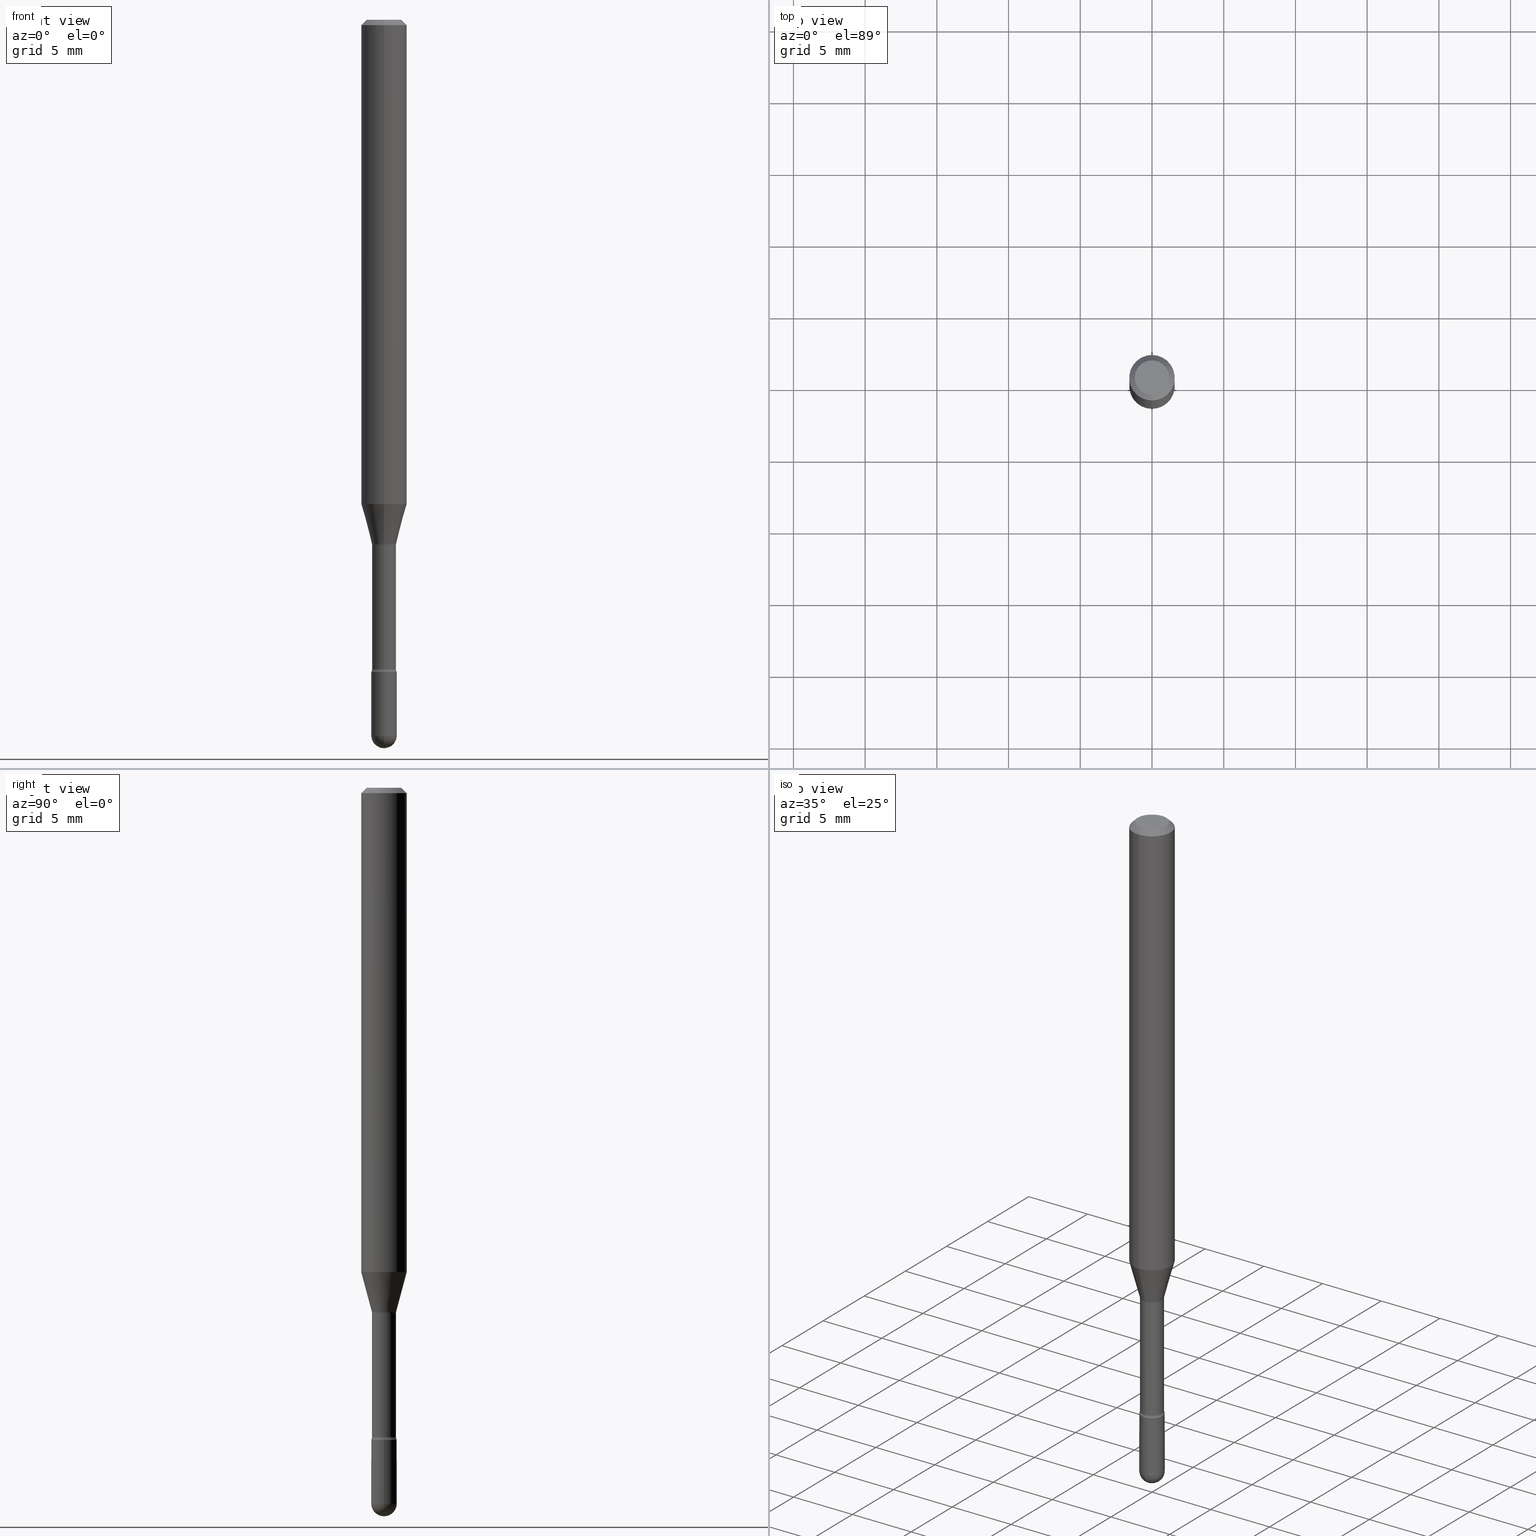
[diagram: canonical four-view strip — front | top / right | iso, engineering-drawing reading convention]
A machine part, canonical four-view strip (front | top / right | iso — engineering-drawing reading convention). The complete STEP part file that produces these views, byte-faithful:
ISO-10303-21;
HEADER;
FILE_DESCRIPTION (( 'STEP AP203' ),
    '1' );
FILE_NAME ('01598.STEP',
    '2024-04-09T20:08:18',
    ( '' ),
    ( '' ),
    'SwSTEP 2.0',
    'SolidWorks 2023',
    '' );
FILE_SCHEMA (( 'CONFIG_CONTROL_DESIGN' ));
ENDSEC;

DATA;
#1 = CIRCLE ( 'NONE', #68, 0.03500000000000001721 ) ;
#2 = DATE_AND_TIME ( #482, #290 ) ;
#3 = FACE_OUTER_BOUND ( 'NONE', #396, .T. ) ;
#4 = COORDINATED_UNIVERSAL_TIME_OFFSET ( 5, 0, .BEHIND. ) ;
#5 = DIRECTION ( 'NONE',  ( -6.982962677686265922E-15, -1.000000000000000000, 0.000000000000000000 ) ) ;
#6 = DIRECTION ( 'NONE',  ( -6.982962677686266711E-15, -1.000000000000000000, 0.000000000000000000 ) ) ;
#7 = ORIENTED_EDGE ( 'NONE', *, *, #50, .T. ) ;
#8 = EDGE_CURVE ( 'NONE', #372, #99, #413, .T. ) ;
#9 = DATE_AND_TIME ( #301, #525 ) ;
#10 = CLOSED_SHELL ( 'NONE', ( #250, #177, #72, #517, #223 ) ) ;
#11 = CARTESIAN_POINT ( 'NONE',  ( -1.169113584055446105E-44, 1.669184350826100908E-30, 4.780733988912460139E-16 ) ) ;
#12 = DIRECTION ( 'NONE',  ( -2.445483522244811550E-29, 3.491460264608105036E-15, 1.000000000000000000 ) ) ;
#13 = EDGE_LOOP ( 'NONE', ( #352, #443, #191, #400 ) ) ;
#14 = EDGE_CURVE ( 'NONE', #118, #449, #383, .T. ) ;
#15 = AXIS2_PLACEMENT_3D ( 'NONE', #26, #499, #373 ) ;
#16 = ORIENTED_EDGE ( 'NONE', *, *, #168, .T. ) ;
#17 = AXIS2_PLACEMENT_3D ( 'NONE', #553, #503, #422 ) ;
#18 = CARTESIAN_POINT ( 'NONE',  ( 4.440892098500948609E-16, 0.06249999999999532319, -1.329531296095961768 ) ) ;
#19 = VERTEX_POINT ( 'NONE', #350 ) ;
#20 = ORIENTED_EDGE ( 'NONE', *, *, #470, .T. ) ;
#21 = DIRECTION ( 'NONE',  ( -2.445483522244811550E-29, 3.491460264608105036E-15, 1.000000000000000000 ) ) ;
#22 = ORIENTED_EDGE ( 'NONE', *, *, #426, .F. ) ;
#23 = LINE ( 'NONE', #56, #236 ) ;
#24 = ORIENTED_EDGE ( 'NONE', *, *, #348, .T. ) ;
#25 = CIRCLE ( 'NONE', #121, 0.03500000000000000333 ) ;
#26 = CARTESIAN_POINT ( 'NONE',  ( 3.516831516584593251E-29, -5.021042826821123581E-15, -1.438092501787272992 ) ) ;
#27 = CONICAL_SURFACE ( 'NONE', #15, 0.03341111260566397706, 0.2617993877991501850 ) ;
#28 = APPROVAL_PERSON_ORGANIZATION ( #335, #320, #248 ) ;
#29 = DIRECTION ( 'NONE',  ( -2.445483522244811550E-29, 3.491460264608105036E-15, 1.000000000000000000 ) ) ;
#30 = VERTEX_POINT ( 'NONE', #467 ) ;
#31 = DIRECTION ( 'NONE',  ( -6.982962677686265133E-15, -1.000000000000000000, 3.491460264608105036E-15 ) ) ;
#32 = VERTEX_POINT ( 'NONE', #178 ) ;
#33 = CC_DESIGN_PERSON_AND_ORGANIZATION_ASSIGNMENT ( #560, #421, ( #322 ) ) ;
#34 = CIRCLE ( 'NONE', #531, 0.04749999999999999362 ) ;
#35 = CARTESIAN_POINT ( 'NONE',  ( -2.444036937189758884E-16, -0.03500000000000629691, -1.789999999999999813 ) ) ;
#36 = LINE ( 'NONE', #197, #505 ) ;
#37 = LINE ( 'NONE', #437, #194 ) ;
#38 = CARTESIAN_POINT ( 'NONE',  ( 4.377389163071394665E-29, -6.249751596529231267E-15, -1.790000000000000036 ) ) ;
#39 = AXIS2_PLACEMENT_3D ( 'NONE', #11, #361, #318 ) ;
#40 = DIRECTION ( 'NONE',  ( -6.982962677686267499E-15, -1.000000000000000000, 0.000000000000000000 ) ) ;
#41 = DIRECTION ( 'NONE',  ( -2.445468806185136597E-29, 3.491481338843145583E-15, 1.000000000000000000 ) ) ;
#42 = DIRECTION ( 'NONE',  ( 7.105427357601001859E-15, 1.000000000000000000, 0.000000000000000000 ) ) ;
#43 = CARTESIAN_POINT ( 'NONE',  ( 3.526325582235213320E-29, -5.034597672996613409E-15, -1.441974787463810914 ) ) ;
#44 = TOROIDAL_SURFACE ( 'NONE', #376, 0.04789999999999999813, 0.01500000000000002373 ) ;
#45 = CARTESIAN_POINT ( 'NONE',  ( 3.526325582235213320E-29, -5.034597672996613409E-15, -1.441974787463810914 ) ) ;
#46 = LOCAL_TIME ( 16, 8, 18.00000000000000000, #384 ) ;
#47 = CARTESIAN_POINT ( 'NONE',  ( -0.03500000000000000333, -6.306566256161970939E-15, -1.964999999999999858 ) ) ;
#48 = ORIENTED_EDGE ( 'NONE', *, *, #347, .T. ) ;
#49 = ADVANCED_FACE ( 'NONE', ( #3 ), #53, .T. ) ;
#50 = EDGE_CURVE ( 'NONE', #30, #375, #37, .T. ) ;
#51 = FACE_OUTER_BOUND ( 'NONE', #405, .T. ) ;
#52 = EDGE_CURVE ( 'NONE', #62, #372, #93, .T. ) ;
#53 = CYLINDRICAL_SURFACE ( 'NONE', #139, 0.03289999999999998481 ) ;
#54 = ORIENTED_EDGE ( 'NONE', *, *, #501, .F. ) ;
#55 = ORIENTED_EDGE ( 'NONE', *, *, #540, .T. ) ;
#56 = CARTESIAN_POINT ( 'NONE',  ( 0.03500000000000000333, -2.444036937190193250E-16, 1.706661871528577808E-30 ) ) ;
#57 = CIRCLE ( 'NONE', #339, 0.01500000000000001853 ) ;
#58 = ORIENTED_EDGE ( 'NONE', *, *, #210, .T. ) ;
#59 = AXIS2_PLACEMENT_3D ( 'NONE', #200, #117, #550 ) ;
#60 = DIRECTION ( 'NONE',  ( -2.445468806185136597E-29, 3.491481338843145583E-15, 1.000000000000000000 ) ) ;
#61 = ADVANCED_FACE ( 'NONE', ( #304 ), #338, .F. ) ;
#62 = VERTEX_POINT ( 'NONE', #300 ) ;
#63 = CARTESIAN_POINT ( 'NONE',  ( 2.444036937190630575E-16, 0.03499999999999375139, -1.790000000000000036 ) ) ;
#64 = ORIENTED_EDGE ( 'NONE', *, *, #14, .F. ) ;
#65 = PRODUCT_DEFINITION_SHAPE ( 'NONE', 'NONE',  #331 ) ;
#66 = DIRECTION ( 'NONE',  ( 1.839019923739599526E-15, 0.2588190451025248473, 0.9659258262890670910 ) ) ;
#67 = EDGE_LOOP ( 'NONE', ( #154, #325, #487, #442 ) ) ;
#68 = AXIS2_PLACEMENT_3D ( 'NONE', #450, #150, #541 ) ;
#69 = DIRECTION ( 'NONE',  ( 6.982962677686265922E-15, 1.000000000000000000, -3.491460264608105430E-15 ) ) ;
#70 = LOCAL_TIME ( 16, 8, 18.00000000000000000, #88 ) ;
#71 = CARTESIAN_POINT ( 'NONE',  ( 3.668225283367237083E-31, -5.237190396912186618E-17, -0.01500000000000008271 ) ) ;
#72 = ADVANCED_FACE ( 'NONE', ( #98 ), #466, .T. ) ;
#73 = ORIENTED_EDGE ( 'NONE', *, *, #429, .T. ) ;
#74 = LINE ( 'NONE', #240, #447 ) ;
#75 = ORIENTED_EDGE ( 'NONE', *, *, #351, .F. ) ;
#76 = AXIS2_PLACEMENT_3D ( 'NONE', #148, #60, #349 ) ;
#77 = CARTESIAN_POINT ( 'NONE',  ( 4.358696770084339745E-29, -6.222988803562137698E-15, -1.782345589506695971 ) ) ;
#78 = CC_DESIGN_SECURITY_CLASSIFICATION ( #322, ( #345 ) ) ;
#79 = SHAPE_DEFINITION_REPRESENTATION ( #65, #124 ) ;
#80 = EDGE_CURVE ( 'NONE', #372, #116, #481, .T. ) ;
#81 = DIRECTION ( 'NONE',  ( 1.000000000000000000, -6.982962677686276966E-15, 0.000000000000000000 ) ) ;
#82 = DIRECTION ( 'NONE',  ( 1.000000000000000000, -6.982962677686265922E-15, 4.876176775795935793E-29 ) ) ;
#83 = FACE_OUTER_BOUND ( 'NONE', #451, .T. ) ;
#84 = APPROVAL_STATUS ( 'not_yet_approved' ) ;
#85 = DIRECTION ( 'NONE',  ( -2.445468806185136597E-29, 3.491481338843145583E-15, 1.000000000000000000 ) ) ;
#86 = CIRCLE ( 'NONE', #59, 0.03500000000000000333 ) ;
#87 = VECTOR ( 'NONE', #433, 39.37007874015748143 ) ;
#88 = COORDINATED_UNIVERSAL_TIME_OFFSET ( 5, 0, .BEHIND. ) ;
#89 = CARTESIAN_POINT ( 'NONE',  ( 0.03500000000000000333, -6.494155290248250444E-15, -1.790000000000000036 ) ) ;
#90 = DIRECTION ( 'NONE',  ( -6.982962677686266711E-15, -1.000000000000000000, 0.000000000000000000 ) ) ;
#91 = PERSON_AND_ORGANIZATION ( #458, #96 ) ;
#92 = CARTESIAN_POINT ( 'NONE',  ( 4.358670540980283234E-29, -6.223026365132013835E-15, -1.782345589506695971 ) ) ;
#93 = CIRCLE ( 'NONE', #166, 0.03289999999999996400 ) ;
#94 = AXIS2_PLACEMENT_3D ( 'NONE', #566, #211, #131 ) ;
#95 = APPLICATION_PROTOCOL_DEFINITION ( 'international standard', 'config_control_design', 1994, #169 ) ;
#96 = ORGANIZATION ( 'UNSPECIFIED', 'UNSPECIFIED', '' ) ;
#97 = CYLINDRICAL_SURFACE ( 'NONE', #184, 0.03500000000000000333 ) ;
#98 = FACE_OUTER_BOUND ( 'NONE', #233, .T. ) ;
#99 = VERTEX_POINT ( 'NONE', #204 ) ;
#100 = ORIENTED_EDGE ( 'NONE', *, *, #170, .T. ) ;
#101 = PERSON_AND_ORGANIZATION ( #458, #96 ) ;
#102 = DIRECTION ( 'NONE',  ( -6.982962677686265922E-15, -1.000000000000000000, 3.491460264608105036E-15 ) ) ;
#103 = EDGE_LOOP ( 'NONE', ( #106, #513, #55, #539 ) ) ;
#104 = CARTESIAN_POINT ( 'NONE',  ( 4.377415504818212781E-29, -6.249713873648508148E-15, -1.790000000000000036 ) ) ;
#105 = AXIS2_PLACEMENT_3D ( 'NONE', #313, #436, #448 ) ;
#106 = ORIENTED_EDGE ( 'NONE', *, *, #470, .F. ) ;
#107 = CYLINDRICAL_SURFACE ( 'NONE', #425, 0.03289999999999998481 ) ;
#108 = ORIENTED_EDGE ( 'NONE', *, *, #498, .F. ) ;
#109 = ORIENTED_EDGE ( 'NONE', *, *, #156, .F. ) ;
#110 = LINE ( 'NONE', #163, #374 ) ;
#111 = ORIENTED_EDGE ( 'NONE', *, *, #379, .T. ) ;
#112 = CARTESIAN_POINT ( 'NONE',  ( 3.316907271900976096E-16, 0.04749999999999999362, 3.181832032788318113E-17 ) ) ;
#113 = CC_DESIGN_PERSON_AND_ORGANIZATION_ASSIGNMENT ( #172, #295, ( #345 ) ) ;
#114 = FACE_OUTER_BOUND ( 'NONE', #67, .T. ) ;
#115 = CIRCLE ( 'NONE', #555, 0.01500000000000007924 ) ;
#116 = VERTEX_POINT ( 'NONE', #387 ) ;
#117 = DIRECTION ( 'NONE',  ( -2.445468806185136597E-29, 3.491481338843145583E-15, 1.000000000000000000 ) ) ;
#118 = VERTEX_POINT ( 'NONE', #382 ) ;
#119 = LINE ( 'NONE', #559, #253 ) ;
#120 = APPROVAL ( #478, 'UNSPECIFIED' ) ;
#121 = AXIS2_PLACEMENT_3D ( 'NONE', #445, #432, #404 ) ;
#122 = CALENDAR_DATE ( 2024, 9, 4 ) ;
#123 = DIRECTION ( 'NONE',  ( -2.445468806185136597E-29, 3.491481338843145583E-15, 1.000000000000000000 ) ) ;
#124 = ADVANCED_BREP_SHAPE_REPRESENTATION ( '01598', ( #316, #511, #239 ), #509 ) ;
#125 = CARTESIAN_POINT ( 'NONE',  ( -3.344839122611288745E-16, -0.04790000000000627089, -1.782345589506695749 ) ) ;
#126 = DIRECTION ( 'NONE',  ( -2.445483522244811550E-29, 3.491460264608105036E-15, 1.000000000000000000 ) ) ;
#127 = CC_DESIGN_DATE_AND_TIME_ASSIGNMENT ( #9, #440, ( #331 ) ) ;
#128 = CIRCLE ( 'NONE', #523, 0.03500000000000000333 ) ;
#129 = AXIS2_PLACEMENT_3D ( 'NONE', #112, #456, #69 ) ;
#130 = LOCAL_TIME ( 16, 8, 18.00000000000000000, #4 ) ;
#131 = DIRECTION ( 'NONE',  ( -6.982962677686265922E-15, -1.000000000000000000, 4.370956789862821150E-15 ) ) ;
#132 = CARTESIAN_POINT ( 'NONE',  ( 4.358670540980283234E-29, -6.223026365132013835E-15, -1.782345589506695971 ) ) ;
#133 = EDGE_CURVE ( 'NONE', #462, #99, #243, .T. ) ;
#134 = APPROVAL_STATUS ( 'not_yet_approved' ) ;
#135 = EDGE_CURVE ( 'NONE', #315, #446, #25, .T. ) ;
#136 = COORDINATED_UNIVERSAL_TIME_OFFSET ( 5, 0, .BEHIND. ) ;
#137 = DIRECTION ( 'NONE',  ( -6.982962677686265133E-15, -1.000000000000000000, 3.491460264608105036E-15 ) ) ;
#138 = DIRECTION ( 'NONE',  ( -6.982962677686265922E-15, -1.000000000000000000, 0.000000000000000000 ) ) ;
#139 = AXIS2_PLACEMENT_3D ( 'NONE', #538, #480, #262 ) ;
#140 = AXIS2_PLACEMENT_3D ( 'NONE', #510, #417, #235 ) ;
#141 = ORIENTED_EDGE ( 'NONE', *, *, #210, .F. ) ;
#142 = PERSON_AND_ORGANIZATION_ROLE ( 'design_owner' ) ;
#143 = DIRECTION ( 'NONE',  ( -6.982962677686265922E-15, -1.000000000000000000, 3.491460264608103852E-15 ) ) ;
#144 = DIRECTION ( 'NONE',  ( -6.982962677686265922E-15, -1.000000000000000000, 3.491460264608105036E-15 ) ) ;
#145 = EDGE_LOOP ( 'NONE', ( #438, #149, #321, #271 ) ) ;
#146 = DIRECTION ( 'NONE',  ( -2.445468806185136597E-29, 3.491481338843145583E-15, 1.000000000000000000 ) ) ;
#147 = ORIENTED_EDGE ( 'NONE', *, *, #429, .F. ) ;
#148 = CARTESIAN_POINT ( 'NONE',  ( 4.805346204153793345E-29, -6.860760830826780393E-15, -1.964999999999999858 ) ) ;
#149 = ORIENTED_EDGE ( 'NONE', *, *, #8, .T. ) ;
#150 = DIRECTION ( 'NONE',  ( -1.000000000000000000, 7.105427357601001070E-15, -4.926315508542082329E-29 ) ) ;
#151 = CC_DESIGN_APPROVAL ( #435, ( #345 ) ) ;
#152 = ORIENTED_EDGE ( 'NONE', *, *, #135, .T. ) ;
#153 = DESIGN_CONTEXT ( 'detailed design', #169, 'design' ) ;
#154 = ORIENTED_EDGE ( 'NONE', *, *, #518, .F. ) ;
#155 = PLANE ( 'NONE',  #129 ) ;
#156 = EDGE_CURVE ( 'NONE', #99, #462, #465, .T. ) ;
#157 = ADVANCED_FACE ( 'NONE', ( #391 ), #551, .F. ) ;
#158 = ORIENTED_EDGE ( 'NONE', *, *, #348, .F. ) ;
#159 = DIRECTION ( 'NONE',  ( -6.982962677686267499E-15, -1.000000000000000000, 0.000000000000000000 ) ) ;
#160 = CIRCLE ( 'NONE', #411, 0.06250000000000000000 ) ;
#161 = DIRECTION ( 'NONE',  ( -2.445483522244811550E-29, 3.491460264608105036E-15, 1.000000000000000000 ) ) ;
#162 = AXIS2_PLACEMENT_3D ( 'NONE', #340, #256, #90 ) ;
#163 = CARTESIAN_POINT ( 'NONE',  ( -0.03500000000000000333, 2.486899575160350887E-16, -1.721627281589217108E-30 ) ) ;
#164 = ORIENTED_EDGE ( 'NONE', *, *, #156, .T. ) ;
#165 = LENGTH_MEASURE_WITH_UNIT ( LENGTH_MEASURE( 0.02539999999999999897 ), #215 );
#166 = AXIS2_PLACEMENT_3D ( 'NONE', #175, #530, #138 ) ;
#167 = DIRECTION ( 'NONE',  ( -1.000000000000000000, 6.982962677686265922E-15, -4.883557194083112340E-29 ) ) ;
#168 = EDGE_CURVE ( 'NONE', #369, #116, #533, .T. ) ;
#169 = APPLICATION_CONTEXT ( 'configuration controlled 3d designs of mechanical parts and assemblies' ) ;
#170 = EDGE_CURVE ( 'NONE', #446, #544, #23, .T. ) ;
#171 = DIRECTION ( 'NONE',  ( -2.445483522244811830E-29, 3.491460264608105430E-15, 1.000000000000000000 ) ) ;
#172 = PERSON_AND_ORGANIZATION ( #458, #96 ) ;
#173 = LINE ( 'NONE', #246, #455 ) ;
#174 = AXIS2_PLACEMENT_3D ( 'NONE', #257, #431, #42 ) ;
#175 = CARTESIAN_POINT ( 'NONE',  ( 4.358696770084339745E-29, -6.222988803562137698E-15, -1.782345589506695971 ) ) ;
#176 = CARTESIAN_POINT ( 'NONE',  ( 0.000000000000000000, 0.000000000000000000, 0.000000000000000000 ) ) ;
#177 = ADVANCED_FACE ( 'NONE', ( #232 ), #193, .T. ) ;
#178 = CARTESIAN_POINT ( 'NONE',  ( -3.773273898774340269E-16, -0.04749999999999999362, 8.309632947117512809E-17 ) ) ;
#179 = VERTEX_POINT ( 'NONE', #546 ) ;
#180 = APPROVAL_ROLE ( '' ) ;
#181 = DIRECTION ( 'NONE',  ( -2.445483522244811550E-29, 3.491460264608105036E-15, 1.000000000000000000 ) ) ;
#182 = VECTOR ( 'NONE', #452, 39.37007874015749564 ) ;
#183 = VERTEX_POINT ( 'NONE', #18 ) ;
#184 = AXIS2_PLACEMENT_3D ( 'NONE', #537, #441, #543 ) ;
#185 = EDGE_LOOP ( 'NONE', ( #280, #231, #73, #108 ) ) ;
#186 = DIRECTION ( 'NONE',  ( -6.982962677686265922E-15, -1.000000000000000000, 3.491460264608105430E-15 ) ) ;
#187 = ORIENTED_EDGE ( 'NONE', *, *, #214, .F. ) ;
#188 = DIRECTION ( 'NONE',  ( -2.445483522244811550E-29, 3.491460264608105036E-15, 1.000000000000000000 ) ) ;
#189 = ORIENTED_EDGE ( 'NONE', *, *, #198, .F. ) ;
#190 = DIRECTION ( 'NONE',  ( -2.445483522244811550E-29, 3.491460264608105036E-15, 1.000000000000000000 ) ) ;
#191 = ORIENTED_EDGE ( 'NONE', *, *, #415, .T. ) ;
#192 = ORIENTED_EDGE ( 'NONE', *, *, #196, .F. ) ;
#193 = SPHERICAL_SURFACE ( 'NONE', #105, 0.03500000000000001721 ) ;
#194 = VECTOR ( 'NONE', #526, 39.37007874015748143 ) ;
#195 = ORIENTED_EDGE ( 'NONE', *, *, #8, .F. ) ;
#196 = EDGE_CURVE ( 'NONE', #285, #183, #514, .T. ) ;
#197 = CARTESIAN_POINT ( 'NONE',  ( 2.374002335562076701E-16, 0.03341111260565896024, -1.438092501787272992 ) ) ;
#198 = EDGE_CURVE ( 'NONE', #226, #315, #1, .T. ) ;
#199 = ORIENTED_EDGE ( 'NONE', *, *, #485, .F. ) ;
#200 = CARTESIAN_POINT ( 'NONE',  ( 4.377389163071394665E-29, -6.249751596529231267E-15, -1.790000000000000036 ) ) ;
#201 = DIRECTION ( 'NONE',  ( -6.982962677686265922E-15, -1.000000000000000000, 3.483106191921935554E-15 ) ) ;
#202 = CIRCLE ( 'NONE', #483, 0.03341111260566397706 ) ;
#203 = CARTESIAN_POINT ( 'NONE',  ( 4.440892098500952553E-16, 0.06249999999999993755, -0.01500000000000030129 ) ) ;
#204 = CARTESIAN_POINT ( 'NONE',  ( 2.337685600651165364E-16, 0.03289999999999496105, -1.441974787463810914 ) ) ;
#205 = DIRECTION ( 'NONE',  ( -2.445468806185136877E-29, 3.491481338843145188E-15, 1.000000000000000000 ) ) ;
#206 =( NAMED_UNIT ( * ) SI_UNIT ( $, .STERADIAN. ) SOLID_ANGLE_UNIT ( ) );
#207 = AXIS2_PLACEMENT_3D ( 'NONE', #556, #332, #238 ) ;
#208 = AXIS2_PLACEMENT_3D ( 'NONE', #552, #344, #6 ) ;
#209 =( CONVERSION_BASED_UNIT ( 'INCH', #165 ) LENGTH_UNIT ( ) NAMED_UNIT ( #522 ) );
#210 = EDGE_CURVE ( 'NONE', #226, #277, #457, .T. ) ;
#211 = DIRECTION ( 'NONE',  ( -2.445483522244811550E-29, 3.491460264608105036E-15, 1.000000000000000000 ) ) ;
#212 = DIRECTION ( 'NONE',  ( 6.982962677686265922E-15, 1.000000000000000000, -3.483106191921935554E-15 ) ) ;
#213 = DIRECTION ( 'NONE',  ( -6.982962677686265133E-15, -1.000000000000000000, 0.000000000000000000 ) ) ;
#214 = EDGE_CURVE ( 'NONE', #277, #242, #319, .T. ) ;
#215 =( LENGTH_UNIT ( ) NAMED_UNIT ( * ) SI_UNIT ( $, .METRE. ) );
#216 = AXIS2_PLACEMENT_3D ( 'NONE', #92, #354, #102 ) ;
#217 = MECHANICAL_CONTEXT ( 'NONE', #439, 'mechanical' ) ;
#218 = DIRECTION ( 'NONE',  ( 6.982962677686265922E-15, 1.000000000000000000, 0.000000000000000000 ) ) ;
#219 = DIRECTION ( 'NONE',  ( 1.000000000000000000, 0.000000000000000000, 0.000000000000000000 ) ) ;
#220 = CARTESIAN_POINT ( 'NONE',  ( 0.000000000000000000, 0.000000000000000000, 0.000000000000000000 ) ) ;
#221 = ORIENTED_EDGE ( 'NONE', *, *, #198, .T. ) ;
#222 = ORIENTED_EDGE ( 'NONE', *, *, #393, .T. ) ;
#223 = ADVANCED_FACE ( 'NONE', ( #261 ), #407, .T. ) ;
#224 = DIRECTION ( 'NONE',  ( -2.445483522244811550E-29, 3.491460264608105036E-15, 1.000000000000000000 ) ) ;
#225 = AXIS2_PLACEMENT_3D ( 'NONE', #284, #326, #31 ) ;
#226 = VERTEX_POINT ( 'NONE', #395 ) ;
#227 = ADVANCED_FACE ( 'NONE', ( #272 ), #289, .F. ) ;
#228 = ORIENTED_EDGE ( 'NONE', *, *, #554, .F. ) ;
#229 = DIRECTION ( 'NONE',  ( 1.000000000000000000, -6.982962677686265922E-15, 4.876176775795936353E-29 ) ) ;
#230 = ORIENTED_EDGE ( 'NONE', *, *, #518, .T. ) ;
#231 = ORIENTED_EDGE ( 'NONE', *, *, #14, .T. ) ;
#232 = FACE_OUTER_BOUND ( 'NONE', #408, .T. ) ;
#233 = EDGE_LOOP ( 'NONE', ( #357, #363 ) ) ;
#234 = CC_DESIGN_PERSON_AND_ORGANIZATION_ASSIGNMENT ( #91, #264, ( #331 ) ) ;
#235 = DIRECTION ( 'NONE',  ( -6.982962677686265922E-15, -1.000000000000000000, 3.491460264608105036E-15 ) ) ;
#236 = VECTOR ( 'NONE', #311, 39.37007874015748143 ) ;
#237 = CIRCLE ( 'NONE', #207, 0.04749999999999999362 ) ;
#238 = DIRECTION ( 'NONE',  ( -6.982962677686266711E-15, -1.000000000000000000, 3.491460264608105430E-15 ) ) ;
#239 = AXIS2_PLACEMENT_3D ( 'NONE', #176, #346, #219 ) ;
#240 = CARTESIAN_POINT ( 'NONE',  ( -4.364351673553916201E-16, -0.06250000000000000000, 6.962896654292526280E-16 ) ) ;
#241 = CARTESIAN_POINT ( 'NONE',  ( -2.486899575159870668E-16, -0.03500000000000687284, -1.964999999999999858 ) ) ;
#242 = VERTEX_POINT ( 'NONE', #47 ) ;
#243 = CIRCLE ( 'NONE', #365, 0.03289999999999999869 ) ;
#244 = DIRECTION ( 'NONE',  ( 6.982962677686265922E-15, 1.000000000000000000, -3.483106191921935554E-15 ) ) ;
#245 = DATE_TIME_ROLE ( 'classification_date' ) ;
#246 = CARTESIAN_POINT ( 'NONE',  ( 4.440892098500625669E-16, 0.06250000000000000000, 2.598571323532394985E-16 ) ) ;
#247 = ADVANCED_FACE ( 'NONE', ( #490 ), #44, .F. ) ;
#248 = APPROVAL_ROLE ( '' ) ;
#249 = DIRECTION ( 'NONE',  ( 1.000000000000000000, -7.105427357601001070E-15, 4.926315250457137801E-29 ) ) ;
#250 = ADVANCED_FACE ( 'NONE', ( #302 ), #97, .T. ) ;
#251 = CIRCLE ( 'NONE', #296, 0.03289999999999996400 ) ;
#252 = DIRECTION ( 'NONE',  ( -1.000000000000000000, 6.982962677686265922E-15, -4.883557194083112340E-29 ) ) ;
#253 = VECTOR ( 'NONE', #418, 39.37007874015748143 ) ;
#254 = CC_DESIGN_APPROVAL ( #320, ( #322 ) ) ;
#255 = APPROVAL_DATE_TIME ( #468, #320 ) ;
#256 = DIRECTION ( 'NONE',  ( -2.445483522244811550E-29, 3.491460264608105036E-15, 1.000000000000000000 ) ) ;
#257 = CARTESIAN_POINT ( 'NONE',  ( 3.403499704291318562E-16, 0.04789999999999382252, -1.782345589506696193 ) ) ;
#258 = CARTESIAN_POINT ( 'NONE',  ( -2.297394720958428512E-16, -0.03290000000000502939, -1.441974787463810914 ) ) ;
#259 = APPROVAL_DATE_TIME ( #2, #435 ) ;
#260 = AXIS2_PLACEMENT_3D ( 'NONE', #476, #292, #82 ) ;
#261 = FACE_OUTER_BOUND ( 'NONE', #308, .T. ) ;
#262 = DIRECTION ( 'NONE',  ( -6.982962677686265922E-15, -1.000000000000000000, 3.491460264608103852E-15 ) ) ;
#263 = AXIS2_PLACEMENT_3D ( 'NONE', #71, #161, #201 ) ;
#264 = PERSON_AND_ORGANIZATION_ROLE ( 'creator' ) ;
#265 = CARTESIAN_POINT ( 'NONE',  ( 3.251346876911460961E-29, -4.642005690871962526E-15, -1.329531296095961546 ) ) ;
#266 = EDGE_LOOP ( 'NONE', ( #508, #282 ) ) ;
#267 = ADVANCED_FACE ( 'NONE', ( #51 ), #398, .T. ) ;
#268 = ORIENTED_EDGE ( 'NONE', *, *, #485, .T. ) ;
#269 = CARTESIAN_POINT ( 'NONE',  ( 2.444036937190673962E-16, 0.03499999999999315464, -1.964999999999999858 ) ) ;
#270 = ADVANCED_FACE ( 'NONE', ( #495 ), #107, .T. ) ;
#271 = ORIENTED_EDGE ( 'NONE', *, *, #564, .F. ) ;
#272 = FACE_OUTER_BOUND ( 'NONE', #13, .T. ) ;
#273 = CONICAL_SURFACE ( 'NONE', #565, 0.06250000000000000000, 0.7853981633974483900 ) ;
#274 = ORIENTED_EDGE ( 'NONE', *, *, #516, .F. ) ;
#275 = ORIENTED_EDGE ( 'NONE', *, *, #303, .F. ) ;
#276 = CARTESIAN_POINT ( 'NONE',  ( -1.169113584055446105E-44, 1.669184350826100908E-30, 4.780733988912460139E-16 ) ) ;
#277 = VERTEX_POINT ( 'NONE', #269 ) ;
#278 = ORIENTED_EDGE ( 'NONE', *, *, #133, .T. ) ;
#279 = LINE ( 'NONE', #323, #182 ) ;
#280 = ORIENTED_EDGE ( 'NONE', *, *, #379, .F. ) ;
#281 = AXIS2_PLACEMENT_3D ( 'NONE', #38, #41, #562 ) ;
#282 = ORIENTED_EDGE ( 'NONE', *, *, #415, .F. ) ;
#283 = AXIS2_PLACEMENT_3D ( 'NONE', #524, #252, #471 ) ;
#284 = CARTESIAN_POINT ( 'NONE',  ( 3.526304362048191557E-29, -5.034628061512206795E-15, -1.441974787463810914 ) ) ;
#285 = VERTEX_POINT ( 'NONE', #444 ) ;
#286 = DIRECTION ( 'NONE',  ( -2.445483522244811830E-29, 3.491460264608105430E-15, 1.000000000000000000 ) ) ;
#287 = CC_DESIGN_PERSON_AND_ORGANIZATION_ASSIGNMENT ( #519, #294, ( #345 ) ) ;
#288 = CARTESIAN_POINT ( 'NONE',  ( 2.412292587905978021E-16, 0.03289999999999374675, -1.782345589506695971 ) ) ;
#289 = TOROIDAL_SURFACE ( 'NONE', #216, 0.04790000000000004671, 0.01500000000000008098 ) ;
#290 = LOCAL_TIME ( 16, 8, 18.00000000000000000, #353 ) ;
#291 = ADVANCED_FACE ( 'NONE', ( #402 ), #355, .F. ) ;
#292 = DIRECTION ( 'NONE',  ( -2.438088387897960049E-29, 3.491481338843145188E-15, 1.000000000000000000 ) ) ;
#293 = DIRECTION ( 'NONE',  ( 1.000000000000000000, -6.982962677686276966E-15, 0.000000000000000000 ) ) ;
#294 = PERSON_AND_ORGANIZATION_ROLE ( 'creator' ) ;
#295 = PERSON_AND_ORGANIZATION_ROLE ( 'design_supplier' ) ;
#296 = AXIS2_PLACEMENT_3D ( 'NONE', #77, #29, #370 ) ;
#297 = SPHERICAL_SURFACE ( 'NONE', #283, 0.03500000000000001721 ) ;
#298 = CIRCLE ( 'NONE', #94, 0.06250000000000000000 ) ;
#299 = FACE_OUTER_BOUND ( 'NONE', #367, .T. ) ;
#300 = CARTESIAN_POINT ( 'NONE',  ( -2.297394720958343216E-16, -0.03290000000000618818, -1.782345589506695971 ) ) ;
#301 = CALENDAR_DATE ( 2024, 9, 4 ) ;
#302 = FACE_OUTER_BOUND ( 'NONE', #360, .T. ) ;
#303 = EDGE_CURVE ( 'NONE', #544, #179, #86, .T. ) ;
#304 = FACE_OUTER_BOUND ( 'NONE', #406, .T. ) ;
#305 = CIRCLE ( 'NONE', #17, 0.03500000000000000333 ) ;
#306 = EDGE_CURVE ( 'NONE', #285, #19, #74, .T. ) ;
#307 = CC_DESIGN_APPROVAL ( #120, ( #331 ) ) ;
#308 = EDGE_LOOP ( 'NONE', ( #453, #324, #152, #100, #228 ) ) ;
#309 = EDGE_CURVE ( 'NONE', #375, #19, #385, .T. ) ;
#310 = PERSON_AND_ORGANIZATION ( #458, #96 ) ;
#311 = DIRECTION ( 'NONE',  ( -2.445468806185136877E-29, 3.491481338843145188E-15, 1.000000000000000000 ) ) ;
#312 = ORIENTED_EDGE ( 'NONE', *, *, #501, .T. ) ;
#313 = CARTESIAN_POINT ( 'NONE',  ( 4.805346204153793345E-29, -6.860760830826780393E-15, -1.964999999999999858 ) ) ;
#314 = EDGE_LOOP ( 'NONE', ( #75, #492, #7, #399 ) ) ;
#315 = VERTEX_POINT ( 'NONE', #241 ) ;
#316 = MANIFOLD_SOLID_BREP ( 'Body-Move/Copy2[1]', #10 ) ;
#317 = ADVANCED_FACE ( 'NONE', ( #114 ), #414, .T. ) ;
#318 = DIRECTION ( 'NONE',  ( -6.982962677686265922E-15, -1.000000000000000000, 3.491460264608105036E-15 ) ) ;
#319 = CIRCLE ( 'NONE', #76, 0.03500000000000000333 ) ;
#320 = APPROVAL ( #84, 'UNSPECIFIED' ) ;
#321 = ORIENTED_EDGE ( 'NONE', *, *, #133, .F. ) ;
#322 = SECURITY_CLASSIFICATION ( '', '', #380 ) ;
#323 = CARTESIAN_POINT ( 'NONE',  ( -2.333085523452895390E-16, -0.03341111260566900082, -1.438092501787272992 ) ) ;
#324 = ORIENTED_EDGE ( 'NONE', *, *, #516, .T. ) ;
#325 = ORIENTED_EDGE ( 'NONE', *, *, #498, .T. ) ;
#326 = DIRECTION ( 'NONE',  ( -2.445483522244811550E-29, 3.491460264608105036E-15, 1.000000000000000000 ) ) ;
#327 = CARTESIAN_POINT ( 'NONE',  ( 0.03500000000000000333, -6.799659907397025402E-15, -1.964999999999999858 ) ) ;
#328 = ADVANCED_FACE ( 'NONE', ( #377 ), #27, .T. ) ;
#329 = ORIENTED_EDGE ( 'NONE', *, *, #80, .F. ) ;
#330 = CONICAL_SURFACE ( 'NONE', #557, 0.06250000000000000000, 0.7853981633974483900 ) ;
#331 = PRODUCT_DEFINITION ( 'UNKNOWN', '', #345, #153 ) ;
#332 = DIRECTION ( 'NONE',  ( -2.445483522244811550E-29, 3.491460264608105036E-15, 1.000000000000000000 ) ) ;
#333 = FACE_OUTER_BOUND ( 'NONE', #103, .T. ) ;
#334 = ORIENTED_EDGE ( 'NONE', *, *, #540, .F. ) ;
#335 = PERSON_AND_ORGANIZATION ( #458, #96 ) ;
#336 = CARTESIAN_POINT ( 'NONE',  ( -2.297394720958780541E-16, -0.03289999999999998481, 5.929424415968526552E-16 ) ) ;
#337 = PRODUCT_RELATED_PRODUCT_CATEGORY ( 'detail', '', ( #362 ) ) ;
#338 = TOROIDAL_SURFACE ( 'NONE', #419, 0.04790000000000004671, 0.01500000000000008098 ) ;
#339 = AXIS2_PLACEMENT_3D ( 'NONE', #430, #249, #343 ) ;
#340 = CARTESIAN_POINT ( 'NONE',  ( 3.516831516584593251E-29, -5.021042826821123581E-15, -1.438092501787272992 ) ) ;
#341 = CARTESIAN_POINT ( 'NONE',  ( 4.805346204153793345E-29, -6.860760830826780393E-15, -1.964999999999999858 ) ) ;
#342 = AXIS2_PLACEMENT_3D ( 'NONE', #63, #364, #186 ) ;
#343 = DIRECTION ( 'NONE',  ( 7.105427357601001859E-15, 1.000000000000000000, 0.000000000000000000 ) ) ;
#344 = DIRECTION ( 'NONE',  ( -2.445483522244811550E-29, 3.491460264608105036E-15, 1.000000000000000000 ) ) ;
#345 = PRODUCT_DEFINITION_FORMATION_WITH_SPECIFIED_SOURCE ( 'ANY', '', #362, .NOT_KNOWN. ) ;
#346 = DIRECTION ( 'NONE',  ( 0.000000000000000000, 0.000000000000000000, 1.000000000000000000 ) ) ;
#347 = EDGE_CURVE ( 'NONE', #30, #32, #237, .T. ) ;
#348 = EDGE_CURVE ( 'NONE', #449, #118, #202, .T. ) ;
#349 = DIRECTION ( 'NONE',  ( 1.000000000000000000, -6.982962677686276966E-15, 0.000000000000000000 ) ) ;
#350 = CARTESIAN_POINT ( 'NONE',  ( -4.364351673553912750E-16, -0.06250000000000005551, -0.01499999999999986587 ) ) ;
#351 = EDGE_CURVE ( 'NONE', #32, #19, #119, .T. ) ;
#352 = ORIENTED_EDGE ( 'NONE', *, *, #371, .F. ) ;
#353 = COORDINATED_UNIVERSAL_TIME_OFFSET ( 5, 0, .BEHIND. ) ;
#354 = DIRECTION ( 'NONE',  ( -2.445483522244811550E-29, 3.491460264608105036E-15, 1.000000000000000000 ) ) ;
#355 = TOROIDAL_SURFACE ( 'NONE', #225, 0.04789999999999999813, 0.01500000000000002373 ) ;
#356 = APPROVAL_PERSON_ORGANIZATION ( #101, #435, #180 ) ;
#357 = ORIENTED_EDGE ( 'NONE', *, *, #303, .T. ) ;
#358 = DIRECTION ( 'NONE',  ( -6.982962677686265922E-15, -1.000000000000000000, 4.370956789862821150E-15 ) ) ;
#359 = EDGE_LOOP ( 'NONE', ( #64, #268, #164, #22 ) ) ;
#360 = EDGE_LOOP ( 'NONE', ( #542, #222, #275, #534, #312 ) ) ;
#361 = DIRECTION ( 'NONE',  ( -2.445483522244811550E-29, 3.491460264608105036E-15, 1.000000000000000000 ) ) ;
#362 = PRODUCT ( '01598', '01598', '', ( #217 ) ) ;
#363 = ORIENTED_EDGE ( 'NONE', *, *, #554, .T. ) ;
#364 = DIRECTION ( 'NONE',  ( -2.445483522244810989E-29, 3.491460264608105430E-15, 1.000000000000000000 ) ) ;
#365 = AXIS2_PLACEMENT_3D ( 'NONE', #45, #532, #486 ) ;
#366 = UNCERTAINTY_MEASURE_WITH_UNIT (LENGTH_MEASURE( 1.000000000000000082E-05 ), #209, 'distance_accuracy_value', 'NONE');
#367 = EDGE_LOOP ( 'NONE', ( #189, #58, #54, #420 ) ) ;
#368 = FACE_OUTER_BOUND ( 'NONE', #489, .T. ) ;
#369 = VERTEX_POINT ( 'NONE', #35 ) ;
#370 = DIRECTION ( 'NONE',  ( -6.982962677686265922E-15, -1.000000000000000000, 0.000000000000000000 ) ) ;
#371 = EDGE_CURVE ( 'NONE', #372, #62, #251, .T. ) ;
#372 = VERTEX_POINT ( 'NONE', #288 ) ;
#373 = DIRECTION ( 'NONE',  ( -6.982962677686266711E-15, -1.000000000000000000, 0.000000000000000000 ) ) ;
#374 = VECTOR ( 'NONE', #205, 39.37007874015748143 ) ;
#375 = VERTEX_POINT ( 'NONE', #203 ) ;
#376 = AXIS2_PLACEMENT_3D ( 'NONE', #529, #190, #137 ) ;
#377 = FACE_OUTER_BOUND ( 'NONE', #185, .T. ) ;
#378 = CARTESIAN_POINT ( 'NONE',  ( -3.344839122611368617E-16, -0.04790000000000502883, -1.441974787463810692 ) ) ;
#379 = EDGE_CURVE ( 'NONE', #118, #183, #36, .T. ) ;
#380 = SECURITY_CLASSIFICATION_LEVEL ( 'unclassified' ) ;
#381 = DIRECTION ( 'NONE',  ( 2.445483522244811550E-29, -3.491460264608105036E-15, -1.000000000000000000 ) ) ;
#382 = CARTESIAN_POINT ( 'NONE',  ( 3.407447217031514627E-16, 0.03341111260565895330, -1.438092501787272992 ) ) ;
#383 = CIRCLE ( 'NONE', #208, 0.03341111260566397706 ) ;
#384 = COORDINATED_UNIVERSAL_TIME_OFFSET ( 5, 0, .BEHIND. ) ;
#385 = CIRCLE ( 'NONE', #263, 0.06250000000000000000 ) ;
#386 =( NAMED_UNIT ( * ) PLANE_ANGLE_UNIT ( ) SI_UNIT ( $, .RADIAN. ) );
#387 = CARTESIAN_POINT ( 'NONE',  ( 2.486899575160791663E-16, 0.03499999999999379302, -1.790000000000000258 ) ) ;
#388 = CARTESIAN_POINT ( 'NONE',  ( 3.668225283367237083E-31, -5.237190396912186618E-17, -0.01500000000000008271 ) ) ;
#389 = CC_DESIGN_PERSON_AND_ORGANIZATION_ASSIGNMENT ( #535, #142, ( #362 ) ) ;
#390 = CARTESIAN_POINT ( 'NONE',  ( 4.805346204153793345E-29, -6.860760830826780393E-15, -1.964999999999999858 ) ) ;
#391 = FACE_OUTER_BOUND ( 'NONE', #266, .T. ) ;
#392 = AXIS2_PLACEMENT_3D ( 'NONE', #43, #188, #213 ) ;
#393 = EDGE_CURVE ( 'NONE', #242, #179, #110, .T. ) ;
#394 = APPROVAL_ROLE ( '' ) ;
#395 = CARTESIAN_POINT ( 'NONE',  ( 4.892434153376336703E-29, -6.980819545787783111E-15, -2.000000000000000000 ) ) ;
#396 = EDGE_LOOP ( 'NONE', ( #195, #549, #496, #109 ) ) ;
#397 = CALENDAR_DATE ( 2024, 9, 4 ) ;
#398 = CYLINDRICAL_SURFACE ( 'NONE', #39, 0.06250000000000000000 ) ;
#399 = ORIENTED_EDGE ( 'NONE', *, *, #309, .T. ) ;
#400 = ORIENTED_EDGE ( 'NONE', *, *, #472, .F. ) ;
#401 = AXIS2_PLACEMENT_3D ( 'NONE', #378, #561, #159 ) ;
#402 = FACE_OUTER_BOUND ( 'NONE', #359, .T. ) ;
#403 = CONICAL_SURFACE ( 'NONE', #162, 0.03341111260566397706, 0.2617993877991501850 ) ;
#404 = DIRECTION ( 'NONE',  ( 1.000000000000000000, -6.982962677686276966E-15, 0.000000000000000000 ) ) ;
#405 = EDGE_LOOP ( 'NONE', ( #416, #230, #334, #504 ) ) ;
#406 = EDGE_LOOP ( 'NONE', ( #329, #502, #497, #16 ) ) ;
#407 = CYLINDRICAL_SURFACE ( 'NONE', #545, 0.03500000000000000333 ) ;
#408 = EDGE_LOOP ( 'NONE', ( #141, #221, #274, #187 ) ) ;
#409 = CARTESIAN_POINT ( 'NONE',  ( -2.333085523452895390E-16, -0.03341111260566900082, -1.438092501787272992 ) ) ;
#410 = AXIS2_PLACEMENT_3D ( 'NONE', #265, #21, #358 ) ;
#411 = AXIS2_PLACEMENT_3D ( 'NONE', #388, #423, #474 ) ;
#412 = ADVANCED_FACE ( 'NONE', ( #333 ), #273, .T. ) ;
#413 = LINE ( 'NONE', #460, #563 ) ;
#414 = CYLINDRICAL_SURFACE ( 'NONE', #140, 0.06250000000000000000 ) ;
#415 = EDGE_CURVE ( 'NONE', #116, #369, #305, .T. ) ;
#416 = ORIENTED_EDGE ( 'NONE', *, *, #196, .T. ) ;
#417 = DIRECTION ( 'NONE',  ( -2.445483522244811550E-29, 3.491460264608105036E-15, 1.000000000000000000 ) ) ;
#418 = DIRECTION ( 'NONE',  ( -4.851104656540964275E-15, -0.7071067811865500152, -0.7071067811865450192 ) ) ;
#419 = AXIS2_PLACEMENT_3D ( 'NONE', #132, #12, #144 ) ;
#420 = ORIENTED_EDGE ( 'NONE', *, *, #135, .F. ) ;
#421 = PERSON_AND_ORGANIZATION_ROLE ( 'classification_officer' ) ;
#422 = DIRECTION ( 'NONE',  ( -6.982962677686265922E-15, -1.000000000000000000, 0.000000000000000000 ) ) ;
#423 = DIRECTION ( 'NONE',  ( -2.445483522244811550E-29, 3.491460264608105036E-15, 1.000000000000000000 ) ) ;
#424 = LINE ( 'NONE', #336, #87 ) ;
#425 = AXIS2_PLACEMENT_3D ( 'NONE', #276, #224, #143 ) ;
#426 = EDGE_CURVE ( 'NONE', #449, #462, #459, .T. ) ;
#427 = CIRCLE ( 'NONE', #536, 0.03500000000000000333 ) ;
#428 = CARTESIAN_POINT ( 'NONE',  ( 2.023659867952848264E-45, -2.889013945039553572E-31, -8.274803309770984779E-17 ) ) ;
#429 = EDGE_CURVE ( 'NONE', #449, #285, #279, .T. ) ;
#430 = CARTESIAN_POINT ( 'NONE',  ( 3.403499704291231294E-16, 0.04789999999999496050, -1.441974787463811136 ) ) ;
#431 = DIRECTION ( 'NONE',  ( 1.000000000000000000, -7.105427357601001070E-15, 4.926315250457137801E-29 ) ) ;
#432 = DIRECTION ( 'NONE',  ( -2.445468806185136597E-29, 3.491481338843145583E-15, 1.000000000000000000 ) ) ;
#433 = DIRECTION ( 'NONE',  ( -2.445483522244811830E-29, 3.491460264608105430E-15, 1.000000000000000000 ) ) ;
#434 = AXIS2_PLACEMENT_3D ( 'NONE', #104, #181, #5 ) ;
#435 = APPROVAL ( #134, 'UNSPECIFIED' ) ;
#436 = DIRECTION ( 'NONE',  ( -1.000000000000000000, 6.982962677686265922E-15, -4.883557194083112340E-29 ) ) ;
#437 = CARTESIAN_POINT ( 'NONE',  ( 4.364351673553919652E-16, 0.06249999999999995143, -0.01500000000000030129 ) ) ;
#438 = ORIENTED_EDGE ( 'NONE', *, *, #52, .T. ) ;
#439 = APPLICATION_CONTEXT ( 'configuration controlled 3d designs of mechanical parts and assemblies' ) ;
#440 = DATE_TIME_ROLE ( 'creation_date' ) ;
#441 = DIRECTION ( 'NONE',  ( -2.445468806185136597E-29, 3.491481338843145583E-15, 1.000000000000000000 ) ) ;
#442 = ORIENTED_EDGE ( 'NONE', *, *, #309, .F. ) ;
#443 = ORIENTED_EDGE ( 'NONE', *, *, #80, .T. ) ;
#444 = CARTESIAN_POINT ( 'NONE',  ( -4.364351673553592768E-16, -0.06250000000000467681, -1.329531296095961101 ) ) ;
#445 = CARTESIAN_POINT ( 'NONE',  ( 4.805346204153793345E-29, -6.860760830826780393E-15, -1.964999999999999858 ) ) ;
#446 = VERTEX_POINT ( 'NONE', #327 ) ;
#447 = VECTOR ( 'NONE', #286, 39.37007874015748143 ) ;
#448 = DIRECTION ( 'NONE',  ( 6.982962677686265922E-15, 1.000000000000000000, 0.000000000000000000 ) ) ;
#449 = VERTEX_POINT ( 'NONE', #409 ) ;
#450 = CARTESIAN_POINT ( 'NONE',  ( 4.805346204153793345E-29, -6.860760830826780393E-15, -1.964999999999999858 ) ) ;
#451 = EDGE_LOOP ( 'NONE', ( #24, #111, #192, #147 ) ) ;
#452 = DIRECTION ( 'NONE',  ( -1.807323732225329350E-15, -0.2588190451025180194, 0.9659258262890689783 ) ) ;
#453 = ORIENTED_EDGE ( 'NONE', *, *, #393, .F. ) ;
#454 = ADVANCED_FACE ( 'NONE', ( #368 ), #155, .F. ) ;
#455 = VECTOR ( 'NONE', #171, 39.37007874015748143 ) ;
#456 = DIRECTION ( 'NONE',  ( 2.445483522244810989E-29, -3.491460264608105430E-15, -1.000000000000000000 ) ) ;
#457 = CIRCLE ( 'NONE', #494, 0.03500000000000001721 ) ;
#458 = PERSON ( 'UNSPECIFIED', 'UNSPECIFIED', 'UNSPECIFIED', ('UNSPECIFIED'), ('UNSPECIFIED'), ('UNSPECIFIED') ) ;
#459 = CIRCLE ( 'NONE', #401, 0.01500000000000001853 ) ;
#460 = CARTESIAN_POINT ( 'NONE',  ( 2.337685600650728039E-16, 0.03289999999999998481, 3.632043561856394713E-16 ) ) ;
#461 = CARTESIAN_POINT ( 'NONE',  ( 3.668225283367237083E-31, -5.237190396912186618E-17, -0.01500000000000008271 ) ) ;
#462 = VERTEX_POINT ( 'NONE', #258 ) ;
#463 = DIRECTION ( 'NONE',  ( -2.445483522244811550E-29, 3.491460264608105036E-15, 1.000000000000000000 ) ) ;
#464 = DIRECTION ( 'NONE',  ( -6.982962677686266711E-15, -1.000000000000000000, 0.000000000000000000 ) ) ;
#465 = CIRCLE ( 'NONE', #392, 0.03289999999999999869 ) ;
#466 = PLANE ( 'NONE',  #260 ) ;
#467 = CARTESIAN_POINT ( 'NONE',  ( 3.840629472727447874E-16, 0.04749999999999999362, -2.485923956665948360E-16 ) ) ;
#468 = DATE_AND_TIME ( #122, #70 ) ;
#469 = DIRECTION ( 'NONE',  ( -6.982962677686266711E-15, -1.000000000000000000, 3.491460264608105430E-15 ) ) ;
#470 = EDGE_CURVE ( 'NONE', #32, #30, #34, .T. ) ;
#471 = DIRECTION ( 'NONE',  ( 6.982962677686265922E-15, 1.000000000000000000, 0.000000000000000000 ) ) ;
#472 = EDGE_CURVE ( 'NONE', #62, #369, #115, .T. ) ;
#473 = CIRCLE ( 'NONE', #281, 0.03500000000000000333 ) ;
#474 = DIRECTION ( 'NONE',  ( -6.982962677686265922E-15, -1.000000000000000000, 3.483106191921935554E-15 ) ) ;
#475 = FACE_OUTER_BOUND ( 'NONE', #314, .T. ) ;
#476 = CARTESIAN_POINT ( 'NONE',  ( 4.377389163071394665E-29, -6.249751596529231267E-15, -1.790000000000000036 ) ) ;
#477 = ADVANCED_FACE ( 'NONE', ( #475 ), #330, .T. ) ;
#478 = APPROVAL_STATUS ( 'not_yet_approved' ) ;
#479 = CARTESIAN_POINT ( 'NONE',  ( 4.805346204153793345E-29, -6.860760830826780393E-15, -1.964999999999999858 ) ) ;
#480 = DIRECTION ( 'NONE',  ( -2.445483522244811550E-29, 3.491460264608105036E-15, 1.000000000000000000 ) ) ;
#481 = CIRCLE ( 'NONE', #174, 0.01500000000000007924 ) ;
#482 = CALENDAR_DATE ( 2024, 9, 4 ) ;
#483 = AXIS2_PLACEMENT_3D ( 'NONE', #506, #463, #464 ) ;
#484 = DIRECTION ( 'NONE',  ( 1.000000000000000000, -6.982962677686265922E-15, 4.883557194083112340E-29 ) ) ;
#485 = EDGE_CURVE ( 'NONE', #118, #99, #57, .T. ) ;
#486 = DIRECTION ( 'NONE',  ( -6.982962677686265133E-15, -1.000000000000000000, 0.000000000000000000 ) ) ;
#487 = ORIENTED_EDGE ( 'NONE', *, *, #306, .T. ) ;
#488 = DATE_AND_TIME ( #397, #130 ) ;
#489 = EDGE_LOOP ( 'NONE', ( #48, #20 ) ) ;
#490 = FACE_OUTER_BOUND ( 'NONE', #493, .T. ) ;
#491 = CC_DESIGN_DATE_AND_TIME_ASSIGNMENT ( #515, #245, ( #322 ) ) ;
#492 = ORIENTED_EDGE ( 'NONE', *, *, #347, .F. ) ;
#493 = EDGE_LOOP ( 'NONE', ( #199, #158, #500, #278 ) ) ;
#494 = AXIS2_PLACEMENT_3D ( 'NONE', #479, #484, #218 ) ;
#495 = FACE_OUTER_BOUND ( 'NONE', #145, .T. ) ;
#496 = ORIENTED_EDGE ( 'NONE', *, *, #564, .T. ) ;
#497 = ORIENTED_EDGE ( 'NONE', *, *, #472, .T. ) ;
#498 = EDGE_CURVE ( 'NONE', #183, #285, #298, .T. ) ;
#499 = DIRECTION ( 'NONE',  ( -2.445483522244811550E-29, 3.491460264608105036E-15, 1.000000000000000000 ) ) ;
#500 = ORIENTED_EDGE ( 'NONE', *, *, #426, .T. ) ;
#501 = EDGE_CURVE ( 'NONE', #446, #277, #427, .T. ) ;
#502 = ORIENTED_EDGE ( 'NONE', *, *, #52, .F. ) ;
#503 = DIRECTION ( 'NONE',  ( -2.445483522244811550E-29, 3.491460264608105036E-15, 1.000000000000000000 ) ) ;
#504 = ORIENTED_EDGE ( 'NONE', *, *, #306, .F. ) ;
#505 = VECTOR ( 'NONE', #66, 39.37007874015748143 ) ;
#506 = CARTESIAN_POINT ( 'NONE',  ( 3.516831516584593251E-29, -5.021042826821123581E-15, -1.438092501787272992 ) ) ;
#507 = CLOSED_SHELL ( 'NONE', ( #291, #270, #227, #412, #267, #547, #328, #317, #477, #454, #157, #61, #49, #247 ) ) ;
#508 = ORIENTED_EDGE ( 'NONE', *, *, #168, .F. ) ;
#509 =( GEOMETRIC_REPRESENTATION_CONTEXT ( 3 ) GLOBAL_UNCERTAINTY_ASSIGNED_CONTEXT ( ( #366 ) ) GLOBAL_UNIT_ASSIGNED_CONTEXT ( ( #209, #386, #206 ) ) REPRESENTATION_CONTEXT ( 'NONE', 'WORKASPACE' ) );
#510 = CARTESIAN_POINT ( 'NONE',  ( -1.169113584055446105E-44, 1.669184350826100908E-30, 4.780733988912460139E-16 ) ) ;
#511 = MANIFOLD_SOLID_BREP ( 'Body-Move/Copy2[2]', #507 ) ;
#512 = DIRECTION ( 'NONE',  ( 2.445483522244811550E-29, -3.491460264608105036E-15, -1.000000000000000000 ) ) ;
#513 = ORIENTED_EDGE ( 'NONE', *, *, #351, .T. ) ;
#514 = CIRCLE ( 'NONE', #410, 0.06250000000000000000 ) ;
#515 = DATE_AND_TIME ( #520, #46 ) ;
#516 = EDGE_CURVE ( 'NONE', #242, #315, #128, .T. ) ;
#517 = ADVANCED_FACE ( 'NONE', ( #299 ), #297, .T. ) ;
#518 = EDGE_CURVE ( 'NONE', #183, #375, #173, .T. ) ;
#519 = PERSON_AND_ORGANIZATION ( #458, #96 ) ;
#520 = CALENDAR_DATE ( 2024, 9, 4 ) ;
#521 = CARTESIAN_POINT ( 'NONE',  ( 3.668225283367237083E-31, -5.237190396912186618E-17, -0.01500000000000008271 ) ) ;
#522 = DIMENSIONAL_EXPONENTS ( 1.000000000000000000, 0.000000000000000000, 0.000000000000000000, 0.000000000000000000, 0.000000000000000000, 0.000000000000000000, 0.000000000000000000 ) ;
#523 = AXIS2_PLACEMENT_3D ( 'NONE', #390, #123, #293 ) ;
#524 = CARTESIAN_POINT ( 'NONE',  ( 4.805346204153793345E-29, -6.860760830826780393E-15, -1.964999999999999858 ) ) ;
#525 = LOCAL_TIME ( 16, 8, 18.00000000000000000, #136 ) ;
#526 = DIRECTION ( 'NONE',  ( 4.937700262164548042E-15, 0.7071067811865451302, -0.7071067811865499042 ) ) ;
#527 = APPLICATION_PROTOCOL_DEFINITION ( 'international standard', 'config_control_design', 1994, #439 ) ;
#528 = APPROVAL_DATE_TIME ( #488, #120 ) ;
#529 = CARTESIAN_POINT ( 'NONE',  ( 3.526304362048191557E-29, -5.034628061512206795E-15, -1.441974787463810914 ) ) ;
#530 = DIRECTION ( 'NONE',  ( -2.445483522244811550E-29, 3.491460264608105036E-15, 1.000000000000000000 ) ) ;
#531 = AXIS2_PLACEMENT_3D ( 'NONE', #428, #126, #469 ) ;
#532 = DIRECTION ( 'NONE',  ( -2.445483522244811550E-29, 3.491460264608105036E-15, 1.000000000000000000 ) ) ;
#534 = ORIENTED_EDGE ( 'NONE', *, *, #170, .F. ) ;
#533 = CIRCLE ( 'NONE', #434, 0.03500000000000000333 ) ;
#535 = PERSON_AND_ORGANIZATION ( #458, #96 ) ;
#536 = AXIS2_PLACEMENT_3D ( 'NONE', #341, #85, #81 ) ;
#537 = CARTESIAN_POINT ( 'NONE',  ( 0.000000000000000000, 0.000000000000000000, 0.000000000000000000 ) ) ;
#538 = CARTESIAN_POINT ( 'NONE',  ( -1.169113584055446105E-44, 1.669184350826100908E-30, 4.780733988912460139E-16 ) ) ;
#539 = ORIENTED_EDGE ( 'NONE', *, *, #50, .F. ) ;
#540 = EDGE_CURVE ( 'NONE', #19, #375, #160, .T. ) ;
#541 = DIRECTION ( 'NONE',  ( -7.105427357601001859E-15, -1.000000000000000000, 0.000000000000000000 ) ) ;
#542 = ORIENTED_EDGE ( 'NONE', *, *, #214, .T. ) ;
#543 = DIRECTION ( 'NONE',  ( 1.000000000000000000, -6.982962677686265922E-15, 4.876176775795936353E-29 ) ) ;
#544 = VERTEX_POINT ( 'NONE', #89 ) ;
#545 = AXIS2_PLACEMENT_3D ( 'NONE', #220, #146, #229 ) ;
#546 = CARTESIAN_POINT ( 'NONE',  ( -0.03500000000000000333, -6.306566256161970939E-15, -1.790000000000000036 ) ) ;
#547 = ADVANCED_FACE ( 'NONE', ( #83 ), #403, .T. ) ;
#548 = APPROVAL_PERSON_ORGANIZATION ( #310, #120, #394 ) ;
#549 = ORIENTED_EDGE ( 'NONE', *, *, #371, .T. ) ;
#550 = DIRECTION ( 'NONE',  ( 1.000000000000000000, -6.982962677686276966E-15, 0.000000000000000000 ) ) ;
#551 = PLANE ( 'NONE',  #342 ) ;
#552 = CARTESIAN_POINT ( 'NONE',  ( 3.516831516584593251E-29, -5.021042826821123581E-15, -1.438092501787272992 ) ) ;
#553 = CARTESIAN_POINT ( 'NONE',  ( 4.377415504818212781E-29, -6.249713873648508148E-15, -1.790000000000000036 ) ) ;
#554 = EDGE_CURVE ( 'NONE', #179, #544, #473, .T. ) ;
#555 = AXIS2_PLACEMENT_3D ( 'NONE', #125, #167, #40 ) ;
#556 = CARTESIAN_POINT ( 'NONE',  ( 2.023659867952848264E-45, -2.889013945039553572E-31, -8.274803309770984779E-17 ) ) ;
#557 = AXIS2_PLACEMENT_3D ( 'NONE', #521, #381, #212 ) ;
#558 = DIRECTION ( 'NONE',  ( -2.445483522244811830E-29, 3.491460264608105430E-15, 1.000000000000000000 ) ) ;
#559 = CARTESIAN_POINT ( 'NONE',  ( -4.287811248607203282E-16, -0.06250000000000005551, -0.01499999999999986587 ) ) ;
#560 = PERSON_AND_ORGANIZATION ( #458, #96 ) ;
#561 = DIRECTION ( 'NONE',  ( -1.000000000000000000, 6.982962677686265922E-15, -4.883557194083112340E-29 ) ) ;
#562 = DIRECTION ( 'NONE',  ( 1.000000000000000000, -6.982962677686276966E-15, 0.000000000000000000 ) ) ;
#563 = VECTOR ( 'NONE', #558, 39.37007874015748143 ) ;
#564 = EDGE_CURVE ( 'NONE', #62, #462, #424, .T. ) ;
#565 = AXIS2_PLACEMENT_3D ( 'NONE', #461, #512, #244 ) ;
#566 = CARTESIAN_POINT ( 'NONE',  ( 3.251346876911460961E-29, -4.642005690871962526E-15, -1.329531296095961546 ) ) ;
ENDSEC;
END-ISO-10303-21;
